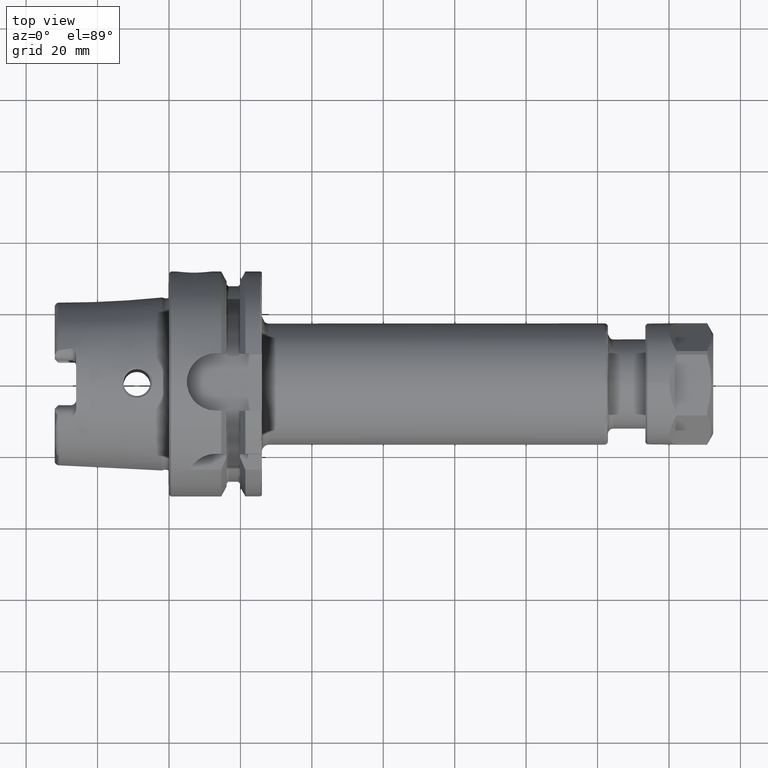
[diagram: clean part render]
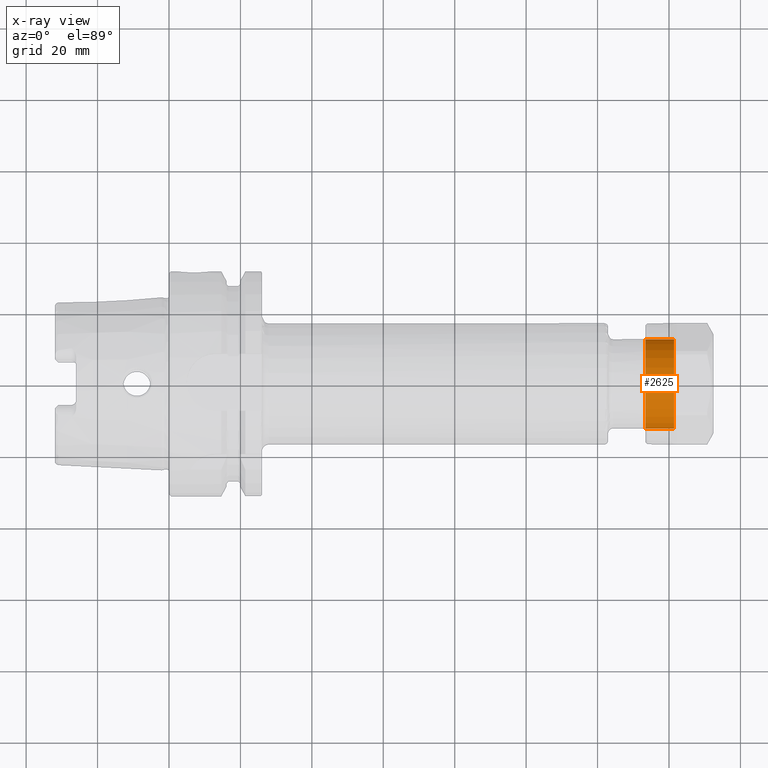
[diagram: x-ray — body ghosted, one internal face saturated and labeled with its STEP entity id]
A machine part, top view, then the same camera in x-ray: the body is ghosted and one INTERNAL B-rep face — a face not visible from any outside direction — is saturated and labeled: STEP entity #2625.
In plain terms, the highlighted cylindrical surface (bore or boss wall) has radius 12.5 mm, axis along (-1, -0, -0).
Its self-contained STEP definition (entity closure, byte-faithful):
#428=FACE_OUTER_BOUND('',#594,.T.);
#594=EDGE_LOOP('',(#2431,#2432,#2433,#2434));
#732=LINE('',#5434,#868);
#868=VECTOR('',#3797,12.5);
#1023=CIRCLE('',#3018,12.5);
#1024=CIRCLE('',#3019,12.5);
#1275=VERTEX_POINT('',#5431);
#1276=VERTEX_POINT('',#5433);
#1661=EDGE_CURVE('',#1275,#1275,#1023,.T.);
#1662=EDGE_CURVE('',#1275,#1276,#732,.T.);
#1663=EDGE_CURVE('',#1276,#1276,#1024,.T.);
#2431=ORIENTED_EDGE('',*,*,#1661,.F.);
#2432=ORIENTED_EDGE('',*,*,#1662,.T.);
#2433=ORIENTED_EDGE('',*,*,#1663,.T.);
#2434=ORIENTED_EDGE('',*,*,#1662,.F.);
#2477=CYLINDRICAL_SURFACE('',#3017,12.5);
#2625=ADVANCED_FACE('',(#428),#2477,.T.);
#3017=AXIS2_PLACEMENT_3D('',#5430,#3793,#3794);
#3018=AXIS2_PLACEMENT_3D('',#5432,#3795,#3796);
#3019=AXIS2_PLACEMENT_3D('',#5435,#3798,#3799);
#3793=DIRECTION('center_axis',(-1.,0.,0.));
#3794=DIRECTION('ref_axis',(0.,-1.,0.));
#3795=DIRECTION('center_axis',(-1.,0.,0.));
#3796=DIRECTION('ref_axis',(0.,1.,0.));
#3797=DIRECTION('',(1.,0.,0.));
#3798=DIRECTION('center_axis',(-1.,0.,0.));
#3799=DIRECTION('ref_axis',(0.,1.,0.));
#5430=CARTESIAN_POINT('Origin',(-9.5,0.,0.));
#5431=CARTESIAN_POINT('',(-9.5,12.5,-1.53080849893419E-15));
#5432=CARTESIAN_POINT('Origin',(-9.5,0.,0.));
#5433=CARTESIAN_POINT('',(-1.5,12.5,-1.53080849893419E-15));
#5434=CARTESIAN_POINT('',(-9.5,12.5,-1.53080849893419E-15));
#5435=CARTESIAN_POINT('Origin',(-1.5,0.,0.));